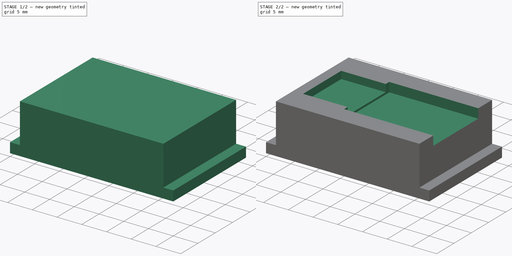
[diagram: build sequence overview — one tinted view per stage of 2, left to right]
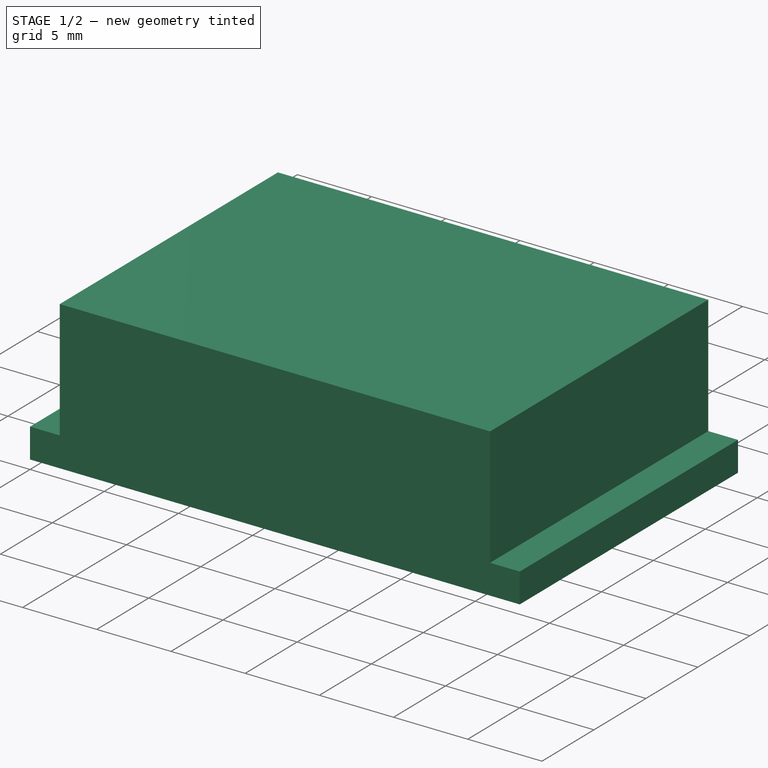
[diagram: stage 1 of 2 — iso view after this stage's code; geometry added in this stage tinted green]
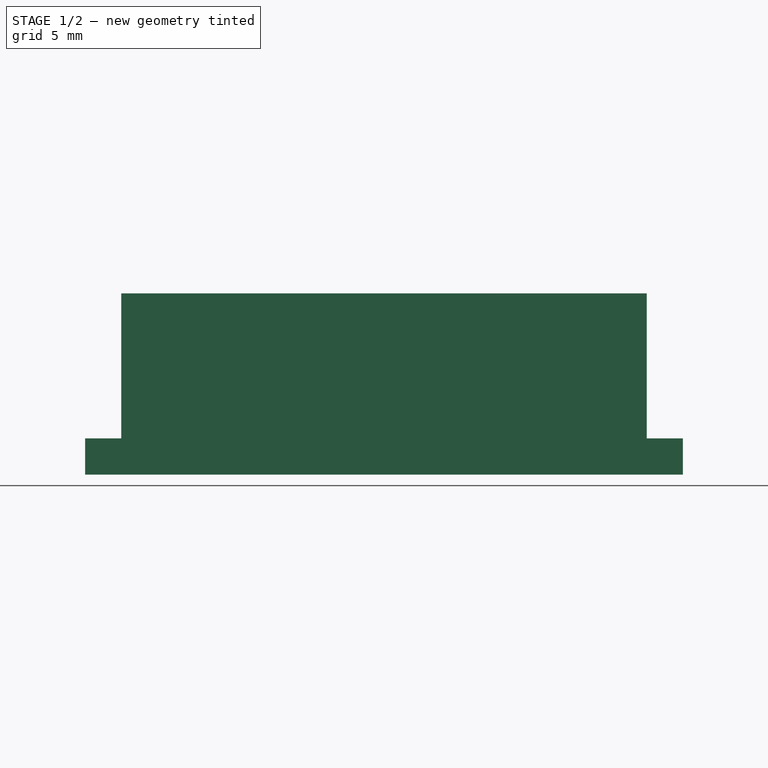
[diagram: stage 1 of 2 — front view after this stage's code; geometry added in this stage tinted green]
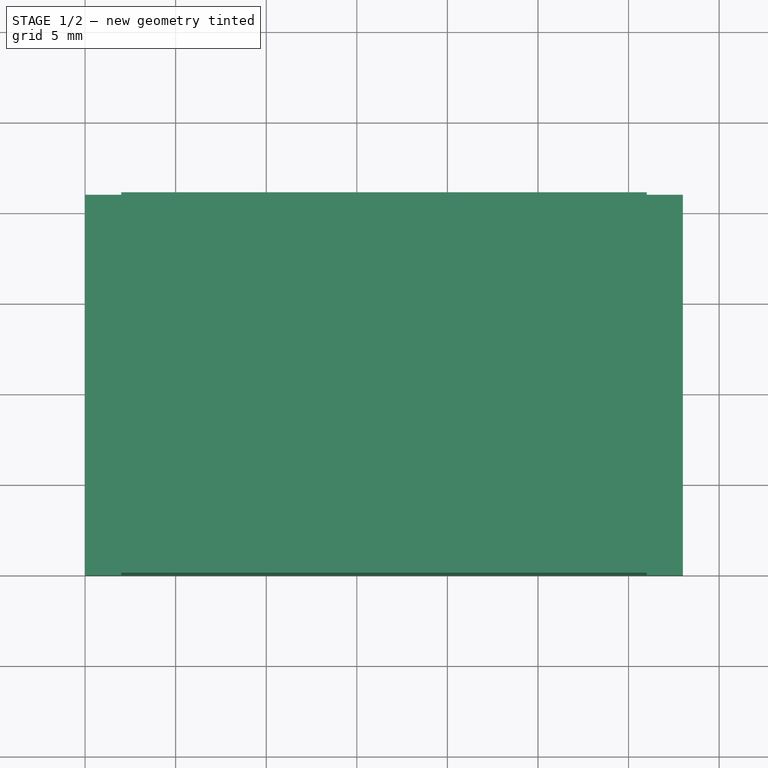
[diagram: stage 1 of 2 — top view after this stage's code; geometry added in this stage tinted green]
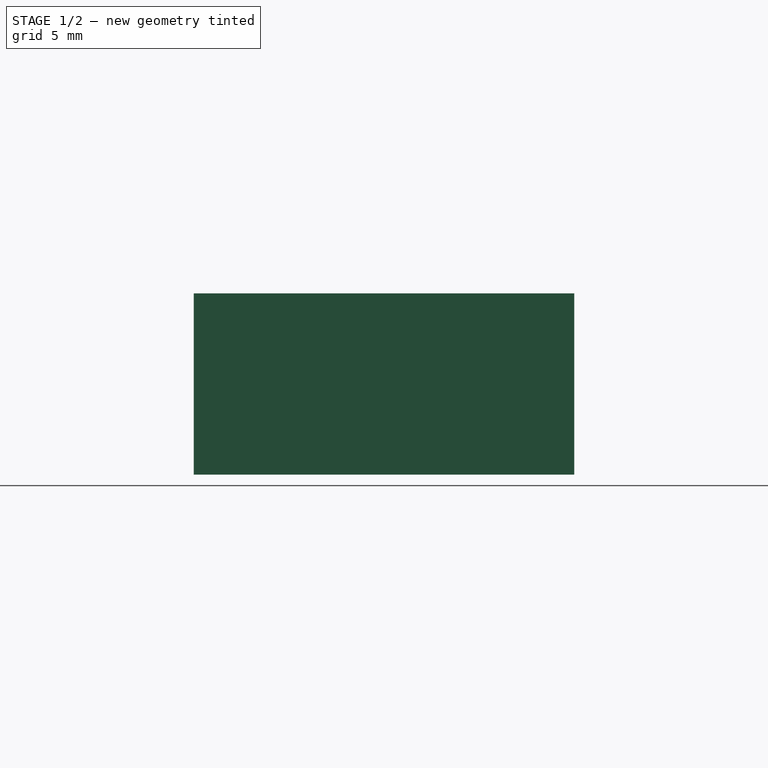
[diagram: stage 1 of 2 — right view after this stage's code; geometry added in this stage tinted green]
FCSTD DOCUMENT
Label: A_E_R
objects: Sketcher::SketchObject×3, PartDesign::Pocket×3, Part::Box×1
note: 10 computed .brp shape members not serialized (recipe doc carries the construction recipe); baked Part::Feature solids carry a one-line shape summary decoded from their .brp

FEATURE [Part::Box] Box
  Height = 10
  Length = 33
  Width = 21
FEATURE [Sketcher::SketchObject] Sketch
  Placement = pos=(0,0,10) rot=(0,0,1;0rad)
  Support = -> Box [Face6]
  sketch-geometry (8):
    g0: LineSegment StartX=0 StartY=0 StartZ=0 EndX=2 EndY=0 EndZ=0
    g1: LineSegment StartX=2 StartY=0 StartZ=0 EndX=2 EndY=21 EndZ=0
    g2: LineSegment StartX=2 StartY=21 StartZ=0 EndX=0 EndY=21 EndZ=0
    g3: LineSegment StartX=0 StartY=21 StartZ=0 EndX=0 EndY=0 EndZ=0
    g4: LineSegment StartX=33 StartY=0 StartZ=0 EndX=31 EndY=0 EndZ=0
    g5: LineSegment StartX=31 StartY=0 StartZ=0 EndX=31 EndY=21 EndZ=0
    g6: LineSegment StartX=31 StartY=21 StartZ=0 EndX=33 EndY=21 EndZ=0
    g7: LineSegment StartX=33 StartY=21 StartZ=0 EndX=33 EndY=0 EndZ=0
  constraints (23):
    c: Coincident(g0,g1)
    c: Coincident(g1,g2)
    c: Coincident(g2,g3)
    c: Coincident(g3,g0)
    c: Horizontal(g0)
    c: Horizontal(g2)
    c: Vertical(g1)
    c: Vertical(g3)
    c: Coincident(g0,g-1)
    c: Coincident(g4,g5)
    c: Coincident(g5,g6)
    c: Coincident(g6,g7)
    c: Coincident(g7,g4)
    c: Horizontal(g4)
    c: Horizontal(g6)
    c: Vertical(g5)
    c: Vertical(g7)
    c: DistanceX(g-1,g4) = 33
    c: Equal(g0,g4)
    c: Equal(g3,g7)
    c: DistanceY(g3) = -21
    c: DistanceX(g2) = -2
    c: PointOnObject(g4,g-1)
FEATURE [PartDesign::Pocket] Pocket
  Length = 8
  Sketch = -> Sketch
  Type = 0
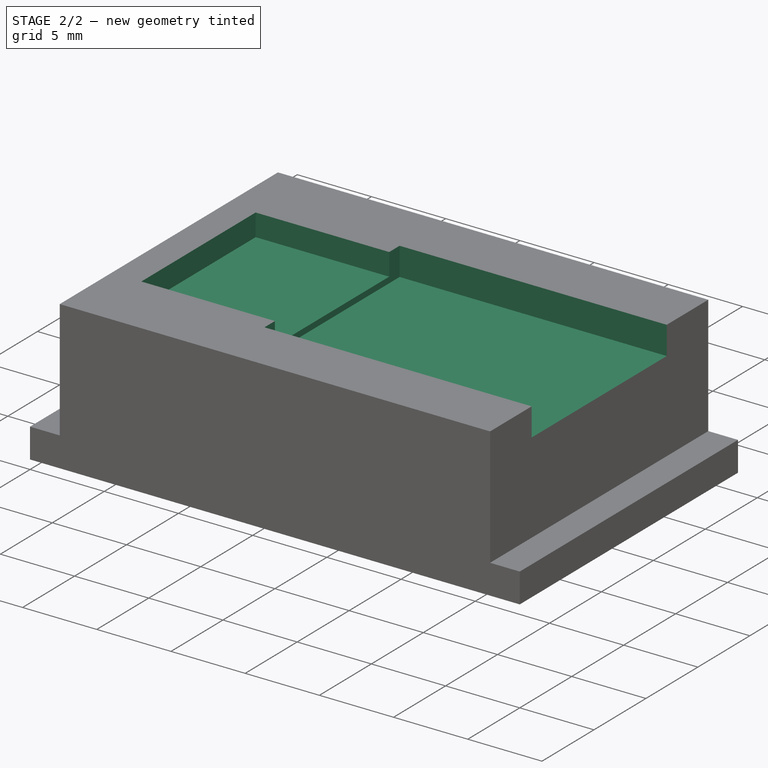
[diagram: stage 2 of 2 — iso view after this stage's code; geometry added in this stage tinted green]
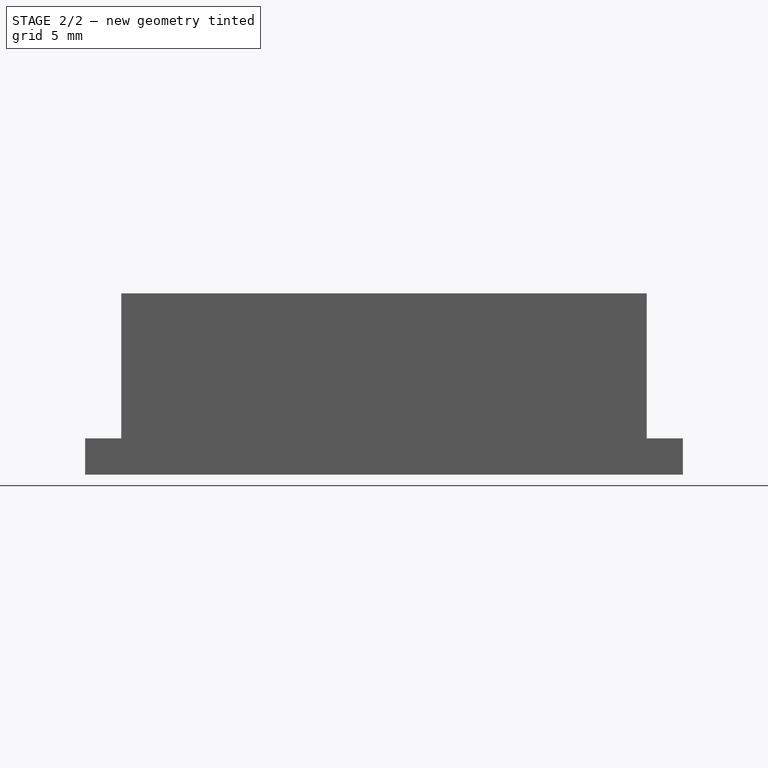
[diagram: stage 2 of 2 — front view after this stage's code; geometry added in this stage tinted green]
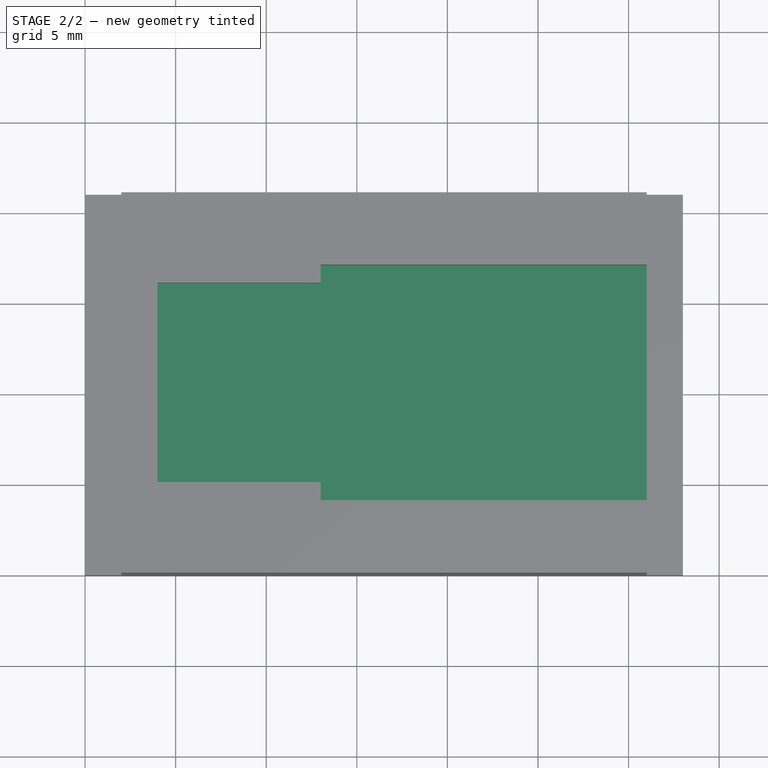
[diagram: stage 2 of 2 — top view after this stage's code; geometry added in this stage tinted green]
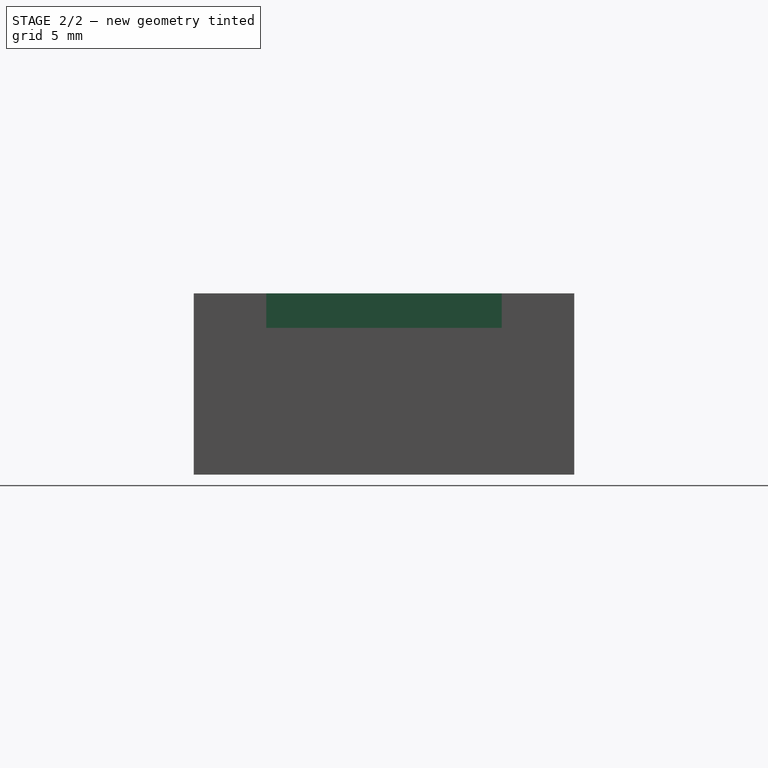
[diagram: stage 2 of 2 — right view after this stage's code; geometry added in this stage tinted green]
FEATURE [Sketcher::SketchObject] Sketch001
  Placement = pos=(0,0,10) rot=(0,0,1;0rad)
  Support = -> Pocket [Face9]
  sketch-geometry (5):
    g0: LineSegment StartX=4 StartY=16 StartZ=0 EndX=13 EndY=16 EndZ=0
    g1: LineSegment StartX=13 StartY=16 StartZ=0 EndX=13 EndY=5 EndZ=0
    g2: LineSegment StartX=13 StartY=5 StartZ=0 EndX=4 EndY=5 EndZ=0
    g3: LineSegment StartX=4 StartY=5 StartZ=0 EndX=4 EndY=16 EndZ=0
    g4: LineSegment [constr] StartX=0 StartY=10.5 StartZ=0 EndX=33 EndY=10.5 EndZ=0
  constraints (16):
    c: Coincident(g0,g1)
    c: Coincident(g1,g2)
    c: Coincident(g3,g0)
    c: Horizontal(g0)
    c: Horizontal(g2)
    c: Vertical(g1)
    c: Vertical(g3)
    c: DistanceX(g-1,g2) = 4
    c: PointOnObject(g4,g-2)
    c: Horizontal(g4)
    c: DistanceX(g4) = 33
    c: Symmetric(g0,g1,g4)
    c: DistanceY(g-1,g4) = 10.5
    c: Coincident(g3,g2)
    c: DistanceY(g-1,g2) = 5
    c: DistanceX(g2) = -9
FEATURE [PartDesign::Pocket] Pocket001
  Length = 1.5
  Sketch = -> Sketch001
  Type = 0
FEATURE [Sketcher::SketchObject] Sketch002
  Placement = pos=(0,0,10) rot=(0,0,1;0rad)
  Support = -> Pocket001 [Face9]
  sketch-geometry (5):
    g0: LineSegment StartX=13 StartY=4 StartZ=0 EndX=31 EndY=4 EndZ=0
    g1: LineSegment StartX=31 StartY=4 StartZ=0 EndX=31 EndY=17 EndZ=0
    g2: LineSegment StartX=31 StartY=17 StartZ=0 EndX=13 EndY=17 EndZ=0
    g3: LineSegment StartX=13 StartY=17 StartZ=0 EndX=13 EndY=4 EndZ=0
    g4: LineSegment [constr] StartX=0 StartY=10.5 StartZ=0 EndX=33 EndY=10.5 EndZ=0
  constraints (16):
    c: Coincident(g0,g1)
    c: Coincident(g1,g2)
    c: Coincident(g2,g3)
    c: Coincident(g3,g0)
    c: Horizontal(g0)
    c: Horizontal(g2)
    c: Vertical(g1)
    c: Vertical(g3)
    c: PointOnObject(g4,g-2)
    c: Horizontal(g4)
    c: DistanceX(g4) = 33
    c: DistanceY(g-1,g4) = 10.5
    c: Symmetric(g0,g1,g4)
    c: DistanceY(g-1,g0) = 4
    c: DistanceX(g-1,g0) = 13
    c: DistanceX(g-1,g0) = 31
FEATURE [PartDesign::Pocket] Pocket002
  Length = 1.9
  Sketch = -> Sketch002
  Type = 0
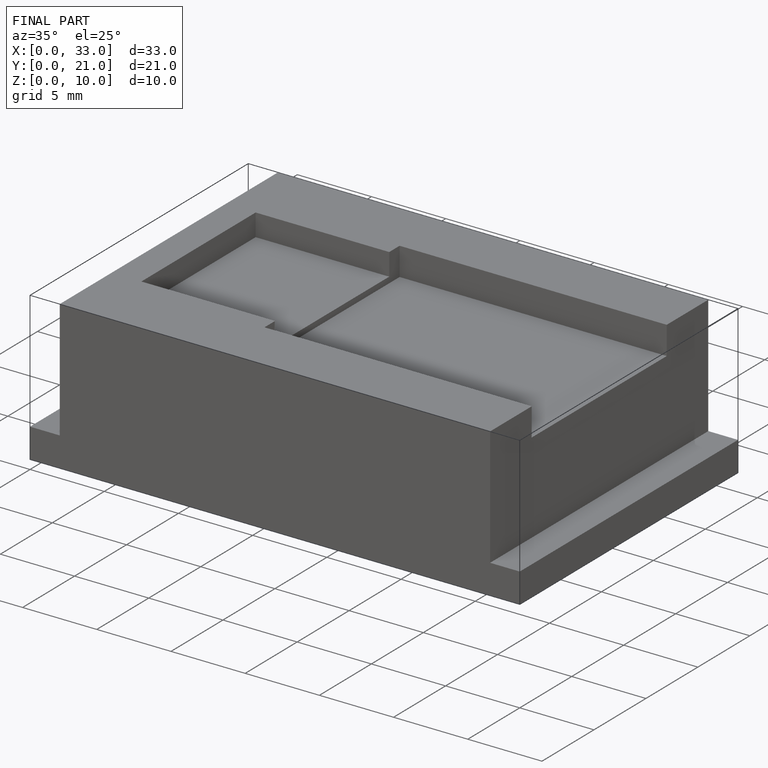
[diagram: finished part — iso view with bounding-box wireframe]
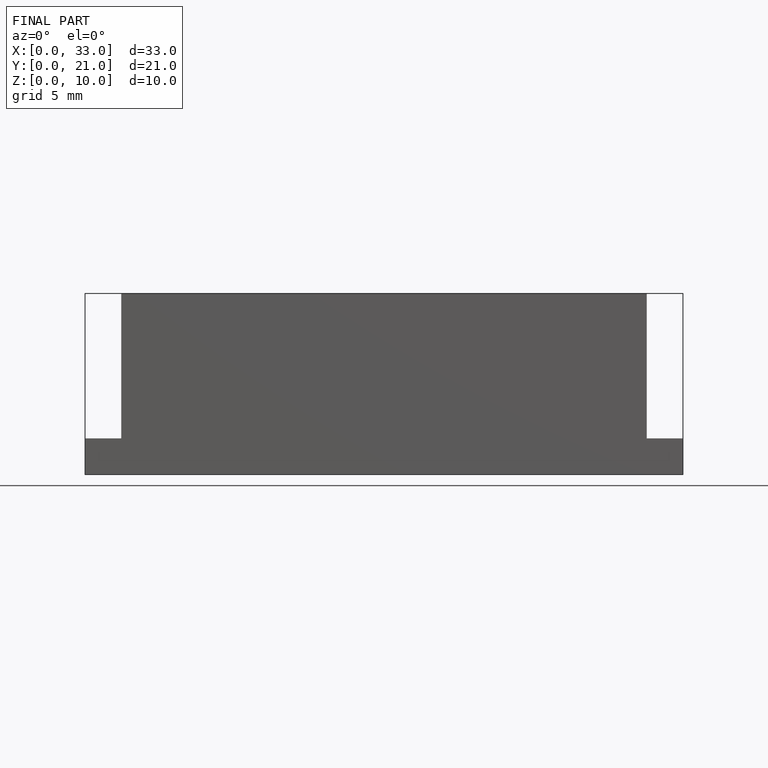
[diagram: finished part — front view with bounding-box wireframe]
